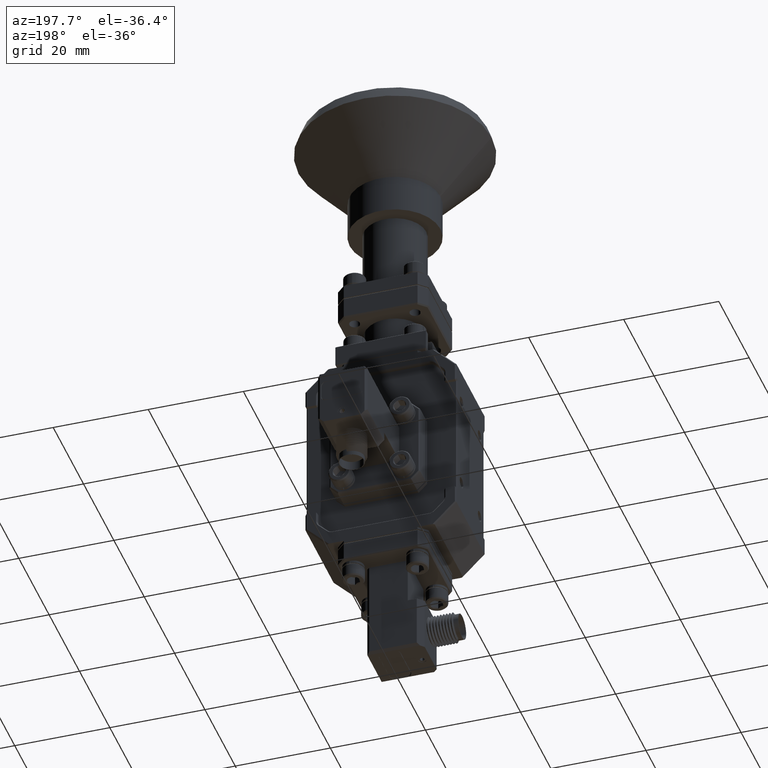
[diagram: clean part render]
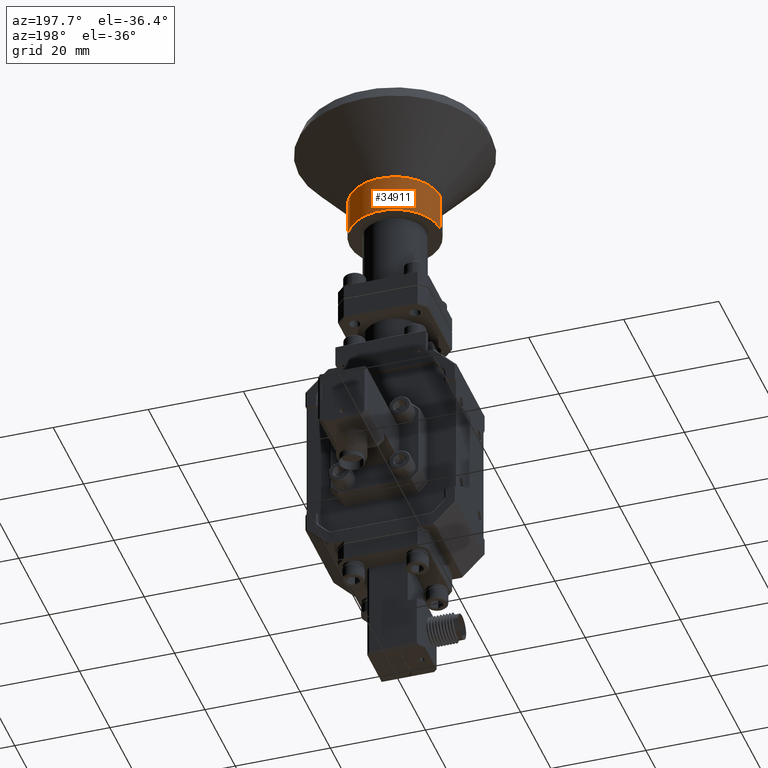
[diagram: same view with one face highlighted and labeled with its STEP entity id]
A machine part, auxiliary view. The second image highlights one B-rep face of the part: STEP entity #34911.
In plain terms, the highlighted cylindrical surface (partial cylindrical patch) has radius 9.5504 mm, axis along (0, 0, 1).
Its self-contained STEP definition (entity closure, byte-faithful):
#102 = CARTESIAN_POINT ( 'NONE',  ( -0.3759999999647115065, 4.604671964361889382E-17, -1.701000000000000068 ) ) ;
#892 = ORIENTED_EDGE ( 'NONE', *, *, #29496, .F. ) ;
#2645 = DIRECTION ( 'NONE',  ( 1.224646799147353207E-16, 0.000000000000000000, 1.000000000000000000 ) ) ;
#6835 = EDGE_LOOP ( 'NONE', ( #15279, #62695, #21675, #892 ) ) ;
#8644 = AXIS2_PLACEMENT_3D ( 'NONE', #60334, #10772, #49850 ) ;
#10029 = DIRECTION ( 'NONE',  ( 1.000000000000000000, 0.000000000000000000, -1.816388293830222154E-16 ) ) ;
#10772 = DIRECTION ( 'NONE',  ( 1.224646799147353207E-16, 0.000000000000000000, 1.000000000000000000 ) ) ;
#12536 = DIRECTION ( 'NONE',  ( 1.224646799147353207E-16, 0.000000000000000000, 1.000000000000000000 ) ) ;
#15279 = ORIENTED_EDGE ( 'NONE', *, *, #32588, .T. ) ;
#15520 = FACE_OUTER_BOUND ( 'NONE', #6835, .T. ) ;
#20726 = EDGE_CURVE ( 'NONE', #37835, #33446, #43605, .T. ) ;
#21675 = ORIENTED_EDGE ( 'NONE', *, *, #39175, .F. ) ;
#25279 = AXIS2_PLACEMENT_3D ( 'NONE', #57398, #28768, #10029 ) ;
#25903 = DIRECTION ( 'NONE',  ( 1.000000000000000000, 0.000000000000000000, 0.000000000000000000 ) ) ;
#26841 = CARTESIAN_POINT ( 'NONE',  ( 9.650216777326262004E-17, 0.000000000000000000, -0.9129999999963157586 ) ) ;
#27735 = LINE ( 'NONE', #51900, #29727 ) ;
#28768 = DIRECTION ( 'NONE',  ( 1.224646799147353207E-16, 0.000000000000000000, 1.000000000000000000 ) ) ;
#28867 = AXIS2_PLACEMENT_3D ( 'NONE', #26841, #12536, #25903 ) ;
#29496 = EDGE_CURVE ( 'NONE', #41042, #44707, #27735, .T. ) ;
#29727 = VECTOR ( 'NONE', #2645, 39.37007874015748143 ) ;
#31385 = CIRCLE ( 'NONE', #25279, 0.3759999999647114510 ) ;
#32588 = EDGE_CURVE ( 'NONE', #41042, #37835, #40981, .T. ) ;
#33446 = VERTEX_POINT ( 'NONE', #35292 ) ;
#33463 = DIRECTION ( 'NONE',  ( 1.224646799147353207E-16, 0.000000000000000000, 1.000000000000000000 ) ) ;
#33523 = CARTESIAN_POINT ( 'NONE',  ( -0.3759999999647114510, 4.604671964361889998E-17, -0.9129999999963157586 ) ) ;
#34911 = ADVANCED_FACE ( 'NONE', ( #15520 ), #50797, .T. ) ;
#35292 = CARTESIAN_POINT ( 'NONE',  ( -0.3759999999647113400, 4.604671964361888149E-17, -0.5939999999963155863 ) ) ;
#37835 = VERTEX_POINT ( 'NONE', #33523 ) ;
#39175 = EDGE_CURVE ( 'NONE', #44707, #33446, #31385, .T. ) ;
#40981 = CIRCLE ( 'NONE', #28867, 0.3759999999647115065 ) ;
#41042 = VERTEX_POINT ( 'NONE', #58607 ) ;
#43605 = LINE ( 'NONE', #102, #48180 ) ;
#44707 = VERTEX_POINT ( 'NONE', #57943 ) ;
#48180 = VECTOR ( 'NONE', #33463, 39.37007874015748143 ) ;
#49850 = DIRECTION ( 'NONE',  ( 1.000000000000000000, 0.000000000000000000, 0.000000000000000000 ) ) ;
#50797 = CYLINDRICAL_SURFACE ( 'NONE', #8644, 0.3759999999647115065 ) ;
#51900 = CARTESIAN_POINT ( 'NONE',  ( 0.3759999999647115065, 0.000000000000000000, -1.701000000000000068 ) ) ;
#57398 = CARTESIAN_POINT ( 'NONE',  ( 1.355684006660631871E-16, 0.000000000000000000, -0.5939999999963156974 ) ) ;
#57943 = CARTESIAN_POINT ( 'NONE',  ( 0.3759999999647116176, 0.000000000000000000, -0.5939999999963158084 ) ) ;
#58607 = CARTESIAN_POINT ( 'NONE',  ( 0.3759999999647116176, 0.000000000000000000, -0.9129999999963157586 ) ) ;
#60334 = CARTESIAN_POINT ( 'NONE',  ( 0.000000000000000000, 0.000000000000000000, -1.701000000000000068 ) ) ;
#62695 = ORIENTED_EDGE ( 'NONE', *, *, #20726, .T. ) ;